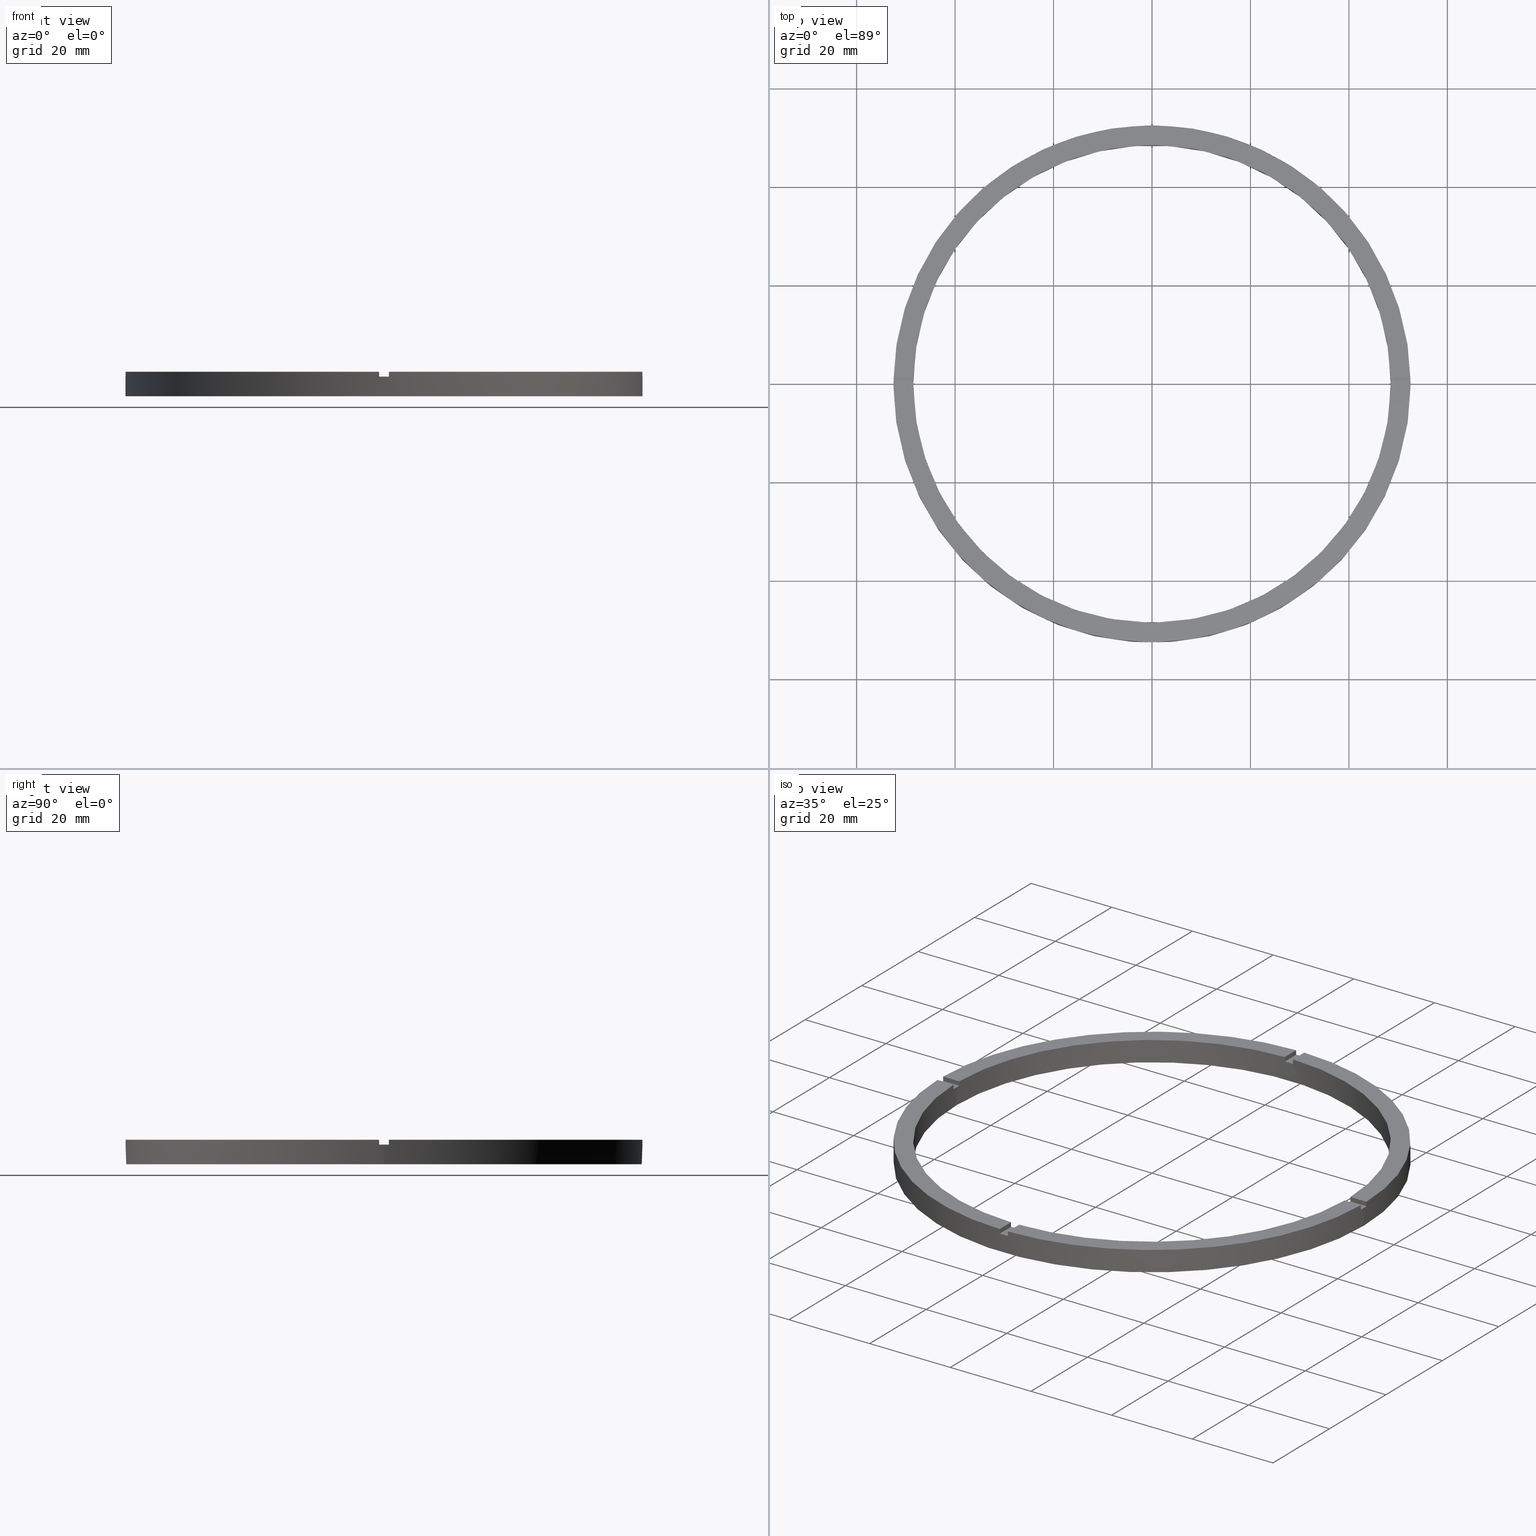
[diagram: canonical four-view strip — front | top / right | iso, engineering-drawing reading convention]
A machine part, canonical four-view strip (front | top / right | iso — engineering-drawing reading convention). The complete STEP part file that produces these views, byte-faithful:
ISO-10303-21;
HEADER;
FILE_DESCRIPTION (( 'STEP AP203' ),
    '1' );
FILE_NAME ('514214.step',
    '2024-12-26T02:48:46',
    ( 'MSI' ),
    ( '' ),
    'SwSTEP 2.0',
    'SolidWorks 2020',
    '' );
FILE_SCHEMA (( 'CONFIG_CONTROL_DESIGN' ));
ENDSEC;

DATA;
#1 = DIRECTION ( 'NONE',  ( -1.000000000000000000, -1.951563910473907735E-16, 0.000000000000000000 ) ) ;
#2 = AXIS2_PLACEMENT_3D ( 'NONE', #266, #256, #751 ) ;
#3 = CARTESIAN_POINT ( 'NONE',  ( -42.50000000000018474, -1.000000000000030198, 5.000000000000000000 ) ) ;
#4 = EDGE_CURVE ( 'NONE', #653, #121, #411, .T. ) ;
#5 = PLANE ( 'NONE',  #454 ) ;
#6 = DIRECTION ( 'NONE',  ( 1.000000000000000000, 0.000000000000000000, 0.000000000000000000 ) ) ;
#7 = CARTESIAN_POINT ( 'NONE',  ( -52.49047532648184244, 0.9999999999999679146, 5.000000000000000000 ) ) ;
#8 = DIRECTION ( 'NONE',  ( -1.000000000000000000, -6.505213034913025371E-17, -0.000000000000000000 ) ) ;
#9 = CARTESIAN_POINT ( 'NONE',  ( 0.000000000000000000, 0.000000000000000000, 4.000000000000000000 ) ) ;
#10 = ADVANCED_FACE ( 'NONE', ( #160 ), #308, .F. ) ;
#11 = DIRECTION ( 'NONE',  ( 1.000000000000000000, 0.000000000000000000, -0.000000000000000000 ) ) ;
#12 = DIRECTION ( 'NONE',  ( 1.000000000000000000, 0.000000000000000000, 0.000000000000000000 ) ) ;
#13 = DIRECTION ( 'NONE',  ( -0.000000000000000000, -0.000000000000000000, -1.000000000000000000 ) ) ;
#14 = ADVANCED_BREP_SHAPE_REPRESENTATION ( '514214', ( #387, #580 ), #174 ) ;
#15 = CARTESIAN_POINT ( 'NONE',  ( -52.49047532648184244, 0.9999999999999679146, 4.000000000000000000 ) ) ;
#16 = CARTESIAN_POINT ( 'NONE',  ( -52.50000000000000000, 0.000000000000000000, 4.000000000000000000 ) ) ;
#17 = CARTESIAN_POINT ( 'NONE',  ( -1.000000000000157430, -42.50000000000017764, 4.000000000000000000 ) ) ;
#18 = AXIS2_PLACEMENT_3D ( 'NONE', #747, #505, #217 ) ;
#19 = AXIS2_PLACEMENT_3D ( 'NONE', #773, #737, #71 ) ;
#20 = CARTESIAN_POINT ( 'NONE',  ( -48.50000000000000000, 0.000000000000000000, 5.000000000000000000 ) ) ;
#21 = DIRECTION ( 'NONE',  ( 0.000000000000000000, 0.000000000000000000, 1.000000000000000000 ) ) ;
#22 = CARTESIAN_POINT ( 'NONE',  ( 0.9999999999999729106, 52.49047532648184244, 5.000000000000000000 ) ) ;
#23 = CARTESIAN_POINT ( 'NONE',  ( -48.48968962573384545, 0.9999999999999685807, 5.000000000000000000 ) ) ;
#24 = DIRECTION ( 'NONE',  ( 1.000000000000000000, -0.000000000000000000, 0.000000000000000000 ) ) ;
#25 = CARTESIAN_POINT ( 'NONE',  ( 48.48968962573384545, -1.000000000000154987, 5.000000000000000000 ) ) ;
#26 = DIRECTION ( 'NONE',  ( 1.000000000000000000, 0.000000000000000000, -0.000000000000000000 ) ) ;
#27 = EDGE_CURVE ( 'NONE', #670, #429, #668, .T. ) ;
#28 = PLANE ( 'NONE',  #521 ) ;
#29 = DIRECTION ( 'NONE',  ( 1.000000000000000000, 0.000000000000000000, 0.000000000000000000 ) ) ;
#30 = PERSON_AND_ORGANIZATION_ROLE ( 'creator' ) ;
#31 = EDGE_CURVE ( 'NONE', #457, #82, #673, .T. ) ;
#32 = PRODUCT_DEFINITION_SHAPE ( 'NONE', 'NONE',  #280 ) ;
#33 = AXIS2_PLACEMENT_3D ( 'NONE', #44, #658, #326 ) ;
#34 = DIRECTION ( 'NONE',  ( 1.000000000000000000, 0.000000000000000000, 0.000000000000000000 ) ) ;
#35 = AXIS2_PLACEMENT_3D ( 'NONE', #615, #278, #64 ) ;
#36 = EDGE_CURVE ( 'NONE', #99, #107, #675, .T. ) ;
#37 = CARTESIAN_POINT ( 'NONE',  ( 48.48968962573384545, 0.9999999999998450129, 5.000000000000000000 ) ) ;
#38 = CARTESIAN_POINT ( 'NONE',  ( -1.000000000000156763, -48.48968962573384545, 5.000000000000000000 ) ) ;
#39 = EDGE_CURVE ( 'NONE', #596, #82, #218, .T. ) ;
#40 = DIRECTION ( 'NONE',  ( 0.000000000000000000, 0.000000000000000000, 1.000000000000000000 ) ) ;
#41 = CARTESIAN_POINT ( 'NONE',  ( -1.000000000000156319, -52.49047532648184244, 5.000000000000000000 ) ) ;
#42 = DIRECTION ( 'NONE',  ( 1.301042606982605074E-16, -1.000000000000000000, 0.000000000000000000 ) ) ;
#43 = EDGE_CURVE ( 'NONE', #130, #98, #480, .T. ) ;
#44 = CARTESIAN_POINT ( 'NONE',  ( 0.000000000000000000, 0.000000000000000000, 0.000000000000000000 ) ) ;
#45 = CC_DESIGN_DATE_AND_TIME_ASSIGNMENT ( #189, #200, ( #280 ) ) ;
#46 = CARTESIAN_POINT ( 'NONE',  ( 52.49047532648184244, -1.000000000000154765, 4.000000000000000000 ) ) ;
#47 = CALENDAR_DATE ( 2024, 26, 12 ) ;
#48 = CARTESIAN_POINT ( 'NONE',  ( -52.50000000000000000, 0.000000000000000000, 5.000000000000000000 ) ) ;
#49 = LOCAL_TIME ( 10, 48, 46.00000000000000000, #329 ) ;
#50 = EDGE_CURVE ( 'NONE', #605, #464, #733, .T. ) ;
#51 = PLANE ( 'NONE',  #740 ) ;
#52 = APPROVAL_DATE_TIME ( #314, #738 ) ;
#53 = DIRECTION ( 'NONE',  ( -0.000000000000000000, -0.000000000000000000, -1.000000000000000000 ) ) ;
#54 = DIRECTION ( 'NONE',  ( 1.000000000000000000, 0.000000000000000000, 0.000000000000000000 ) ) ;
#55 = LOCAL_TIME ( 10, 48, 46.00000000000000000, #315 ) ;
#56 = DATE_AND_TIME ( #61, #49 ) ;
#57 = DIRECTION ( 'NONE',  ( 0.000000000000000000, 0.000000000000000000, 1.000000000000000000 ) ) ;
#58 = EDGE_CURVE ( 'NONE', #722, #400, #736, .T. ) ;
#59 = CARTESIAN_POINT ( 'NONE',  ( 0.9999999999999729106, 48.48968962573384545, 4.000000000000000000 ) ) ;
#60 = DIRECTION ( 'NONE',  ( -1.000000000000000000, -1.301042606982605074E-16, 0.000000000000000000 ) ) ;
#61 = CALENDAR_DATE ( 2024, 26, 12 ) ;
#62 = COORDINATED_UNIVERSAL_TIME_OFFSET ( 8, 0, .AHEAD. ) ;
#63 = CARTESIAN_POINT ( 'NONE',  ( 0.000000000000000000, 0.000000000000000000, 5.000000000000000000 ) ) ;
#64 = DIRECTION ( 'NONE',  ( 0.000000000000000000, 0.000000000000000000, 1.000000000000000000 ) ) ;
#65 = DIRECTION ( 'NONE',  ( -0.000000000000000000, -0.000000000000000000, -1.000000000000000000 ) ) ;
#66 = EDGE_CURVE ( 'NONE', #151, #616, #228, .T. ) ;
#67 = AXIS2_PLACEMENT_3D ( 'NONE', #328, #229, #34 ) ;
#68 = DIRECTION ( 'NONE',  ( 1.000000000000000000, 0.000000000000000000, -0.000000000000000000 ) ) ;
#69 = CARTESIAN_POINT ( 'NONE',  ( 0.000000000000000000, 0.000000000000000000, 5.000000000000000000 ) ) ;
#70 = EDGE_CURVE ( 'NONE', #366, #624, #477, .T. ) ;
#71 = DIRECTION ( 'NONE',  ( 1.000000000000000000, 0.000000000000000000, 0.000000000000000000 ) ) ;
#72 = LOCAL_TIME ( 10, 48, 46.00000000000000000, #62 ) ;
#73 = AXIS2_PLACEMENT_3D ( 'NONE', #552, #275, #595 ) ;
#74 = CARTESIAN_POINT ( 'NONE',  ( -52.49047532648184244, -1.000000000000032196, 5.000000000000000000 ) ) ;
#75 = ADVANCED_FACE ( 'NONE', ( #219 ), #537, .F. ) ;
#76 = DIRECTION ( 'NONE',  ( 1.000000000000000000, 0.000000000000000000, 0.000000000000000000 ) ) ;
#77 = ORIENTED_EDGE ( 'NONE', *, *, #493, .T. ) ;
#78 = CARTESIAN_POINT ( 'NONE',  ( 0.000000000000000000, 0.000000000000000000, 4.000000000000000000 ) ) ;
#79 = ORIENTED_EDGE ( 'NONE', *, *, #147, .F. ) ;
#80 = AXIS2_PLACEMENT_3D ( 'NONE', #390, #24, #490 ) ;
#81 = EDGE_LOOP ( 'NONE', ( #362, #359, #413, #622 ) ) ;
#82 = VERTEX_POINT ( 'NONE', #579 ) ;
#83 = ORIENTED_EDGE ( 'NONE', *, *, #27, .T. ) ;
#84 = ORIENTED_EDGE ( 'NONE', *, *, #746, .F. ) ;
#85 = APPLICATION_CONTEXT ( 'configuration controlled 3d designs of mechanical parts and assemblies' ) ;
#86 = ORIENTED_EDGE ( 'NONE', *, *, #304, .T. ) ;
#87 = ORIENTED_EDGE ( 'NONE', *, *, #31, .F. ) ;
#88 = CC_DESIGN_APPROVAL ( #255, ( #619 ) ) ;
#89 = ORIENTED_EDGE ( 'NONE', *, *, #4, .F. ) ;
#90 = ORIENTED_EDGE ( 'NONE', *, *, #66, .T. ) ;
#91 = AXIS2_PLACEMENT_3D ( 'NONE', #558, #519, #556 ) ;
#92 = ORIENTED_EDGE ( 'NONE', *, *, #458, .T. ) ;
#93 = VERTEX_POINT ( 'NONE', #264 ) ;
#94 = ORIENTED_EDGE ( 'NONE', *, *, #231, .T. ) ;
#95 = EDGE_LOOP ( 'NONE', ( #350, #606, #178, #330 ) ) ;
#96 = DIRECTION ( 'NONE',  ( 0.000000000000000000, 0.000000000000000000, 1.000000000000000000 ) ) ;
#97 = ORIENTED_EDGE ( 'NONE', *, *, #437, .F. ) ;
#98 = VERTEX_POINT ( 'NONE', #502 ) ;
#99 = VERTEX_POINT ( 'NONE', #573 ) ;
#100 = ORIENTED_EDGE ( 'NONE', *, *, #590, .T. ) ;
#101 = ORIENTED_EDGE ( 'NONE', *, *, #522, .T. ) ;
#102 = VERTEX_POINT ( 'NONE', #46 ) ;
#103 = ORIENTED_EDGE ( 'NONE', *, *, #442, .F. ) ;
#104 = ORIENTED_EDGE ( 'NONE', *, *, #220, .F. ) ;
#105 = ORIENTED_EDGE ( 'NONE', *, *, #732, .F. ) ;
#106 = ORIENTED_EDGE ( 'NONE', *, *, #27, .F. ) ;
#107 = VERTEX_POINT ( 'NONE', #687 ) ;
#108 = ORIENTED_EDGE ( 'NONE', *, *, #39, .F. ) ;
#109 = ORIENTED_EDGE ( 'NONE', *, *, #50, .T. ) ;
#110 = VECTOR ( 'NONE', #325, 1000.000000000000000 ) ;
#111 = ORIENTED_EDGE ( 'NONE', *, *, #690, .T. ) ;
#112 = VERTEX_POINT ( 'NONE', #148 ) ;
#113 = VECTOR ( 'NONE', #741, 1000.000000000000000 ) ;
#114 = DIRECTION ( 'NONE',  ( 0.000000000000000000, 0.000000000000000000, 1.000000000000000000 ) ) ;
#115 = ORIENTED_EDGE ( 'NONE', *, *, #389, .T. ) ;
#116 = CARTESIAN_POINT ( 'NONE',  ( -1.000000000000027089, 48.48968962573384545, 5.000000000000000000 ) ) ;
#117 = VERTEX_POINT ( 'NONE', #540 ) ;
#118 = CIRCLE ( 'NONE', #142, 48.50000000000000000 ) ;
#119 = ORIENTED_EDGE ( 'NONE', *, *, #527, .F. ) ;
#120 = EDGE_CURVE ( 'NONE', #124, #130, #474, .T. ) ;
#121 = VERTEX_POINT ( 'NONE', #681 ) ;
#122 = FACE_OUTER_BOUND ( 'NONE', #468, .T. ) ;
#123 = ORIENTED_EDGE ( 'NONE', *, *, #50, .F. ) ;
#124 = VERTEX_POINT ( 'NONE', #752 ) ;
#125 = CARTESIAN_POINT ( 'NONE',  ( 0.000000000000000000, 0.000000000000000000, 5.000000000000000000 ) ) ;
#126 = VERTEX_POINT ( 'NONE', #38 ) ;
#127 = EDGE_LOOP ( 'NONE', ( #594, #338, #332, #351, #79, #115, #393, #651, #372, #345, #623, #620 ) ) ;
#128 = VECTOR ( 'NONE', #1, 1000.000000000000000 ) ;
#129 = DIRECTION ( 'NONE',  ( 1.000000000000000000, 0.000000000000000000, 0.000000000000000000 ) ) ;
#130 = VERTEX_POINT ( 'NONE', #116 ) ;
#131 = ORIENTED_EDGE ( 'NONE', *, *, #297, .F. ) ;
#132 = LINE ( 'NONE', #267, #152 ) ;
#133 = ORIENTED_EDGE ( 'NONE', *, *, #493, .F. ) ;
#134 = EDGE_LOOP ( 'NONE', ( #341, #100, #608, #661, #377, #655, #138, #343, #89, #209, #711, #385 ) ) ;
#135 = LINE ( 'NONE', #753, #665 ) ;
#136 = VERTEX_POINT ( 'NONE', #570 ) ;
#137 = AXIS2_PLACEMENT_3D ( 'NONE', #69, #768, #185 ) ;
#138 = ORIENTED_EDGE ( 'NONE', *, *, #318, .F. ) ;
#139 = CIRCLE ( 'NONE', #729, 52.50000000000000000 ) ;
#140 = PLANE ( 'NONE',  #357 ) ;
#141 = ORIENTED_EDGE ( 'NONE', *, *, #318, .T. ) ;
#142 = AXIS2_PLACEMENT_3D ( 'NONE', #456, #504, #292 ) ;
#143 = ORIENTED_EDGE ( 'NONE', *, *, #437, .T. ) ;
#144 = LINE ( 'NONE', #237, #428 ) ;
#145 = ORIENTED_EDGE ( 'NONE', *, *, #754, .T. ) ;
#146 = ADVANCED_FACE ( 'NONE', ( #211, #735 ), #755, .F. ) ;
#147 = EDGE_CURVE ( 'NONE', #617, #640, #473, .T. ) ;
#148 = CARTESIAN_POINT ( 'NONE',  ( 48.50000000000000000, 5.939536975864663363E-15, 0.000000000000000000 ) ) ;
#149 = ORIENTED_EDGE ( 'NONE', *, *, #726, .F. ) ;
#150 = VECTOR ( 'NONE', #212, 1000.000000000000000 ) ;
#151 = VERTEX_POINT ( 'NONE', #479 ) ;
#152 = VECTOR ( 'NONE', #585, 1000.000000000000000 ) ;
#153 = VERTEX_POINT ( 'NONE', #699 ) ;
#154 = LINE ( 'NONE', #360, #159 ) ;
#155 = CARTESIAN_POINT ( 'NONE',  ( 42.49999999999998579, -1.000000000000155431, 4.000000000000000000 ) ) ;
#156 = VERTEX_POINT ( 'NONE', #589 ) ;
#157 = FACE_OUTER_BOUND ( 'NONE', #127, .T. ) ;
#158 = VECTOR ( 'NONE', #516, 1000.000000000000000 ) ;
#159 = VECTOR ( 'NONE', #766, 1000.000000000000000 ) ;
#160 = FACE_OUTER_BOUND ( 'NONE', #95, .T. ) ;
#161 = ORIENTED_EDGE ( 'NONE', *, *, #533, .T. ) ;
#162 = FACE_OUTER_BOUND ( 'NONE', #336, .T. ) ;
#163 = DIRECTION ( 'NONE',  ( 0.000000000000000000, 0.000000000000000000, 1.000000000000000000 ) ) ;
#164 = ORIENTED_EDGE ( 'NONE', *, *, #517, .T. ) ;
#165 = CIRCLE ( 'NONE', #67, 48.50000000000000000 ) ;
#166 = DIRECTION ( 'NONE',  ( -1.000000000000000000, 0.000000000000000000, 0.000000000000000000 ) ) ;
#167 = CARTESIAN_POINT ( 'NONE',  ( -1.000000000000157430, -42.50000000000017764, 5.000000000000000000 ) ) ;
#168 = CIRCLE ( 'NONE', #526, 48.50000000000000000 ) ;
#169 = LINE ( 'NONE', #564, #150 ) ;
#170 = LINE ( 'NONE', #296, #632 ) ;
#171 = CIRCLE ( 'NONE', #575, 52.50000000000000000 ) ;
#172 = CARTESIAN_POINT ( 'NONE',  ( -48.50000000000000000, 0.000000000000000000, 0.000000000000000000 ) ) ;
#173 = DIRECTION ( 'NONE',  ( 0.000000000000000000, 0.000000000000000000, 1.000000000000000000 ) ) ;
#174 =( GEOMETRIC_REPRESENTATION_CONTEXT ( 3 ) GLOBAL_UNCERTAINTY_ASSIGNED_CONTEXT ( ( #660 ) ) GLOBAL_UNIT_ASSIGNED_CONTEXT ( ( #317, #181, #243 ) ) REPRESENTATION_CONTEXT ( 'NONE', 'WORKASPACE' ) );
#175 = LINE ( 'NONE', #728, #720 ) ;
#176 = VECTOR ( 'NONE', #21, 1000.000000000000000 ) ;
#177 = DIRECTION ( 'NONE',  ( 0.000000000000000000, 0.000000000000000000, 1.000000000000000000 ) ) ;
#178 = ORIENTED_EDGE ( 'NONE', *, *, #732, .T. ) ;
#179 = FACE_OUTER_BOUND ( 'NONE', #415, .T. ) ;
#180 = DIRECTION ( 'NONE',  ( 0.000000000000000000, 0.000000000000000000, 1.000000000000000000 ) ) ;
#181 =( NAMED_UNIT ( * ) PLANE_ANGLE_UNIT ( ) SI_UNIT ( $, .RADIAN. ) );
#182 = CIRCLE ( 'NONE', #763, 48.50000000000000000 ) ;
#183 = ADVANCED_FACE ( 'NONE', ( #743 ), #51, .T. ) ;
#184 = CARTESIAN_POINT ( 'NONE',  ( 0.9999999999998432365, -48.48968962573384545, 5.000000000000000000 ) ) ;
#185 = DIRECTION ( 'NONE',  ( 1.000000000000000000, 0.000000000000000000, 0.000000000000000000 ) ) ;
#186 = CARTESIAN_POINT ( 'NONE',  ( 0.9999999999999729106, 48.48968962573384545, 5.000000000000000000 ) ) ;
#187 = CARTESIAN_POINT ( 'NONE',  ( 0.9999999999999729106, 42.49999999999999289, 5.000000000000000000 ) ) ;
#188 = ORIENTED_EDGE ( 'NONE', *, *, #304, .F. ) ;
#189 = DATE_AND_TIME ( #445, #444 ) ;
#190 = EDGE_CURVE ( 'NONE', #195, #117, #221, .T. ) ;
#191 = ORIENTED_EDGE ( 'NONE', *, *, #496, .F. ) ;
#192 = APPROVAL_PERSON_ORGANIZATION ( #436, #547, #776 ) ;
#193 = EDGE_CURVE ( 'NONE', #102, #82, #481, .T. ) ;
#194 = CARTESIAN_POINT ( 'NONE',  ( -52.49047532648184244, -1.000000000000032196, 5.000000000000000000 ) ) ;
#195 = VERTEX_POINT ( 'NONE', #489 ) ;
#196 = ORIENTED_EDGE ( 'NONE', *, *, #120, .F. ) ;
#197 = CIRCLE ( 'NONE', #19, 48.50000000000000000 ) ;
#198 = VERTEX_POINT ( 'NONE', #15 ) ;
#199 = COORDINATED_UNIVERSAL_TIME_OFFSET ( 8, 0, .AHEAD. ) ;
#200 = DATE_TIME_ROLE ( 'creation_date' ) ;
#201 = AXIS2_PLACEMENT_3D ( 'NONE', #466, #96, #254 ) ;
#202 = AXIS2_PLACEMENT_3D ( 'NONE', #239, #245, #512 ) ;
#203 = LINE ( 'NONE', #514, #459 ) ;
#204 = ORIENTED_EDGE ( 'NONE', *, *, #654, .F. ) ;
#205 = LINE ( 'NONE', #320, #727 ) ;
#206 = PLANE ( 'NONE',  #233 ) ;
#207 = EDGE_LOOP ( 'NONE', ( #398, #86, #77, #598, #591, #346 ) ) ;
#208 = FACE_OUTER_BOUND ( 'NONE', #81, .T. ) ;
#209 = ORIENTED_EDGE ( 'NONE', *, *, #701, .T. ) ;
#210 = FACE_OUTER_BOUND ( 'NONE', #641, .T. ) ;
#211 = FACE_OUTER_BOUND ( 'NONE', #409, .T. ) ;
#212 = DIRECTION ( 'NONE',  ( -1.000000000000000000, -6.505213034913025371E-17, -0.000000000000000000 ) ) ;
#213 = VECTOR ( 'NONE', #771, 1000.000000000000000 ) ;
#214 = ADVANCED_FACE ( 'NONE', ( #223 ), #731, .T. ) ;
#215 = CARTESIAN_POINT ( 'NONE',  ( 0.000000000000000000, 0.000000000000000000, 0.000000000000000000 ) ) ;
#216 = VECTOR ( 'NONE', #163, 1000.000000000000000 ) ;
#217 = DIRECTION ( 'NONE',  ( 1.000000000000000000, 0.000000000000000000, 0.000000000000000000 ) ) ;
#218 = CIRCLE ( 'NONE', #541, 52.50000000000000000 ) ;
#219 = FACE_OUTER_BOUND ( 'NONE', #650, .T. ) ;
#220 = EDGE_CURVE ( 'NONE', #621, #112, #224, .T. ) ;
#221 = LINE ( 'NONE', #184, #487 ) ;
#222 = DIRECTION ( 'NONE',  ( 1.000000000000000000, 0.000000000000000000, 0.000000000000000000 ) ) ;
#223 = FACE_OUTER_BOUND ( 'NONE', #645, .T. ) ;
#224 = CIRCLE ( 'NONE', #602, 48.50000000000000000 ) ;
#225 = LINE ( 'NONE', #20, #213 ) ;
#226 = DIRECTION ( 'NONE',  ( -1.301042606982605074E-16, 1.000000000000000000, -0.000000000000000000 ) ) ;
#227 = CARTESIAN_POINT ( 'NONE',  ( 52.50000000000000000, 6.429395695523603956E-15, 0.000000000000000000 ) ) ;
#228 = CIRCLE ( 'NONE', #201, 48.50000000000000000 ) ;
#229 = DIRECTION ( 'NONE',  ( 0.000000000000000000, 0.000000000000000000, 1.000000000000000000 ) ) ;
#230 = CARTESIAN_POINT ( 'NONE',  ( 0.9999999999999729106, 48.48968962573384545, 5.000000000000000000 ) ) ;
#231 = EDGE_CURVE ( 'NONE', #596, #156, #486, .T. ) ;
#232 = CARTESIAN_POINT ( 'NONE',  ( 0.000000000000000000, 0.000000000000000000, 4.000000000000000000 ) ) ;
#233 = AXIS2_PLACEMENT_3D ( 'NONE', #569, #685, #294 ) ;
#234 = DIRECTION ( 'NONE',  ( -0.000000000000000000, -0.000000000000000000, -1.000000000000000000 ) ) ;
#235 = CARTESIAN_POINT ( 'NONE',  ( 0.9999999999998436806, -52.49047532648184955, 5.000000000000000000 ) ) ;
#236 = CARTESIAN_POINT ( 'NONE',  ( 0.000000000000000000, 0.000000000000000000, 4.000000000000000000 ) ) ;
#237 = CARTESIAN_POINT ( 'NONE',  ( 52.50000000000000000, 6.429395695523603956E-15, 5.000000000000000000 ) ) ;
#238 = AXIS2_PLACEMENT_3D ( 'NONE', #783, #536, #448 ) ;
#239 = CARTESIAN_POINT ( 'NONE',  ( 0.000000000000000000, 0.000000000000000000, 5.000000000000000000 ) ) ;
#240 = EDGE_CURVE ( 'NONE', #151, #621, #225, .T. ) ;
#241 = DIRECTION ( 'NONE',  ( -0.000000000000000000, -0.000000000000000000, -1.000000000000000000 ) ) ;
#242 = CARTESIAN_POINT ( 'NONE',  ( -48.48968962573384545, 0.9999999999999685807, 5.000000000000000000 ) ) ;
#243 =( NAMED_UNIT ( * ) SI_UNIT ( $, .STERADIAN. ) SOLID_ANGLE_UNIT ( ) );
#244 = CARTESIAN_POINT ( 'NONE',  ( 0.000000000000000000, 0.000000000000000000, 5.000000000000000000 ) ) ;
#245 = DIRECTION ( 'NONE',  ( -0.000000000000000000, -0.000000000000000000, -1.000000000000000000 ) ) ;
#246 = EDGE_CURVE ( 'NONE', #130, #626, #168, .T. ) ;
#247 = CARTESIAN_POINT ( 'NONE',  ( 0.000000000000000000, 0.000000000000000000, 5.000000000000000000 ) ) ;
#248 = DIRECTION ( 'NONE',  ( 0.000000000000000000, 0.000000000000000000, 1.000000000000000000 ) ) ;
#249 = APPROVAL_STATUS ( 'not_yet_approved' ) ;
#250 = DIRECTION ( 'NONE',  ( 1.000000000000000000, 1.951563910473907735E-16, 0.000000000000000000 ) ) ;
#251 = AXIS2_PLACEMENT_3D ( 'NONE', #478, #679, #222 ) ;
#252 = EDGE_CURVE ( 'NONE', #355, #626, #406, .T. ) ;
#253 = CARTESIAN_POINT ( 'NONE',  ( 0.000000000000000000, 0.000000000000000000, 4.000000000000000000 ) ) ;
#254 = DIRECTION ( 'NONE',  ( 1.000000000000000000, 0.000000000000000000, 0.000000000000000000 ) ) ;
#255 = APPROVAL ( #497, 'δָ��' ) ;
#256 = DIRECTION ( 'NONE',  ( 0.000000000000000000, 0.000000000000000000, 1.000000000000000000 ) ) ;
#257 = AXIS2_PLACEMENT_3D ( 'NONE', #271, #274, #76 ) ;
#258 = AXIS2_PLACEMENT_3D ( 'NONE', #523, #248, #54 ) ;
#259 = ADVANCED_FACE ( 'NONE', ( #122 ), #682, .F. ) ;
#260 = DIRECTION ( 'NONE',  ( -0.000000000000000000, -0.000000000000000000, -1.000000000000000000 ) ) ;
#261 = CC_DESIGN_DATE_AND_TIME_ASSIGNMENT ( #319, #565, ( #619 ) ) ;
#262 = DIRECTION ( 'NONE',  ( 1.000000000000000000, 0.000000000000000000, -0.000000000000000000 ) ) ;
#263 = ADVANCED_FACE ( 'NONE', ( #425 ), #28, .T. ) ;
#264 = CARTESIAN_POINT ( 'NONE',  ( -1.000000000000156763, -48.48968962573384545, 4.000000000000000000 ) ) ;
#265 = CARTESIAN_POINT ( 'NONE',  ( 0.000000000000000000, 0.000000000000000000, 4.000000000000000000 ) ) ;
#266 = CARTESIAN_POINT ( 'NONE',  ( 0.000000000000000000, 0.000000000000000000, 5.000000000000000000 ) ) ;
#267 = CARTESIAN_POINT ( 'NONE',  ( -1.000000000000156763, -48.48968962573384545, 5.000000000000000000 ) ) ;
#268 = PLANE ( 'NONE',  #384 ) ;
#269 = EDGE_CURVE ( 'NONE', #723, #374, #382, .T. ) ;
#270 = DIRECTION ( 'NONE',  ( 0.000000000000000000, 0.000000000000000000, 1.000000000000000000 ) ) ;
#271 = CARTESIAN_POINT ( 'NONE',  ( 0.000000000000000000, 0.000000000000000000, 4.000000000000000000 ) ) ;
#272 = DIRECTION ( 'NONE',  ( 0.000000000000000000, 0.000000000000000000, 1.000000000000000000 ) ) ;
#273 = AXIS2_PLACEMENT_3D ( 'NONE', #63, #241, #524 ) ;
#274 = DIRECTION ( 'NONE',  ( 0.000000000000000000, -0.000000000000000000, 1.000000000000000000 ) ) ;
#275 = DIRECTION ( 'NONE',  ( 0.000000000000000000, 0.000000000000000000, 1.000000000000000000 ) ) ;
#276 = PRODUCT ( '514214', '514214', '', ( #525 ) ) ;
#277 = DIRECTION ( 'NONE',  ( 0.000000000000000000, 0.000000000000000000, 1.000000000000000000 ) ) ;
#278 = DIRECTION ( 'NONE',  ( -1.000000000000000000, 0.000000000000000000, 0.000000000000000000 ) ) ;
#279 = PLANE ( 'NONE',  #760 ) ;
#280 = PRODUCT_DEFINITION ( 'δ֪', '', #285, #712 ) ;
#281 = CARTESIAN_POINT ( 'NONE',  ( 52.49047532648184244, -1.000000000000154765, 5.000000000000000000 ) ) ;
#282 = AXIS2_PLACEMENT_3D ( 'NONE', #769, #180, #313 ) ;
#283 = ADVANCED_FACE ( 'NONE', ( #642 ), #206, .F. ) ;
#284 = DIRECTION ( 'NONE',  ( -0.000000000000000000, 0.000000000000000000, 1.000000000000000000 ) ) ;
#285 = PRODUCT_DEFINITION_FORMATION_WITH_SPECIFIED_SOURCE ( '�κ�', '', #276, .NOT_KNOWN. ) ;
#286 = SECURITY_CLASSIFICATION_LEVEL ( 'unclassified' ) ;
#287 = CARTESIAN_POINT ( 'NONE',  ( -52.49047532648184244, -1.000000000000032196, 4.000000000000000000 ) ) ;
#288 = DIRECTION ( 'NONE',  ( -0.000000000000000000, -1.000000000000000000, -0.000000000000000000 ) ) ;
#289 = CARTESIAN_POINT ( 'NONE',  ( -42.50000000000018474, 0.9999999999999699130, 4.000000000000000000 ) ) ;
#290 = DIRECTION ( 'NONE',  ( 0.000000000000000000, 0.000000000000000000, 1.000000000000000000 ) ) ;
#291 = DIRECTION ( 'NONE',  ( 1.951563910473907735E-16, -1.000000000000000000, 0.000000000000000000 ) ) ;
#292 = DIRECTION ( 'NONE',  ( 1.000000000000000000, 0.000000000000000000, 0.000000000000000000 ) ) ;
#293 = EDGE_CURVE ( 'NONE', #198, #153, #674, .T. ) ;
#294 = DIRECTION ( 'NONE',  ( -1.301042606982605074E-16, 1.000000000000000000, 0.000000000000000000 ) ) ;
#295 = DIRECTION ( 'NONE',  ( -0.000000000000000000, -0.000000000000000000, -1.000000000000000000 ) ) ;
#296 = CARTESIAN_POINT ( 'NONE',  ( 0.9999999999998425704, -42.50000000000017764, 4.000000000000000000 ) ) ;
#297 = EDGE_CURVE ( 'NONE', #93, #670, #373, .T. ) ;
#298 = EDGE_CURVE ( 'NONE', #198, #597, #399, .T. ) ;
#299 = DIRECTION ( 'NONE',  ( 1.000000000000000000, 6.505213034913025371E-17, 0.000000000000000000 ) ) ;
#300 = CARTESIAN_POINT ( 'NONE',  ( -1.000000000000027089, 42.49999999999999289, 5.000000000000000000 ) ) ;
#301 = CC_DESIGN_PERSON_AND_ORGANIZATION_ASSIGNMENT ( #327, #659, ( #285 ) ) ;
#302 = DIRECTION ( 'NONE',  ( 1.000000000000000000, 0.000000000000000000, 0.000000000000000000 ) ) ;
#303 = DIRECTION ( 'NONE',  ( 1.000000000000000000, 0.000000000000000000, 0.000000000000000000 ) ) ;
#304 = EDGE_CURVE ( 'NONE', #597, #374, #412, .T. ) ;
#305 = CARTESIAN_POINT ( 'NONE',  ( -42.50000000000018474, 0.9999999999999699130, 4.000000000000000000 ) ) ;
#306 = CARTESIAN_POINT ( 'NONE',  ( 0.000000000000000000, 0.000000000000000000, 4.000000000000000000 ) ) ;
#307 = ADVANCED_FACE ( 'NONE', ( #162 ), #749, .F. ) ;
#308 = PLANE ( 'NONE',  #80 ) ;
#309 = DIRECTION ( 'NONE',  ( 1.000000000000000000, 0.000000000000000000, 0.000000000000000000 ) ) ;
#310 = DIRECTION ( 'NONE',  ( -0.000000000000000000, -1.000000000000000000, -0.000000000000000000 ) ) ;
#311 = EDGE_CURVE ( 'NONE', #334, #640, #165, .T. ) ;
#312 = CARTESIAN_POINT ( 'NONE',  ( -1.000000000000156319, -52.49047532648184244, 5.000000000000000000 ) ) ;
#313 = DIRECTION ( 'NONE',  ( 1.000000000000000000, 0.000000000000000000, -0.000000000000000000 ) ) ;
#314 = DATE_AND_TIME ( #581, #55 ) ;
#315 = COORDINATED_UNIVERSAL_TIME_OFFSET ( 8, 0, .AHEAD. ) ;
#316 = PERSON_AND_ORGANIZATION ( #331, #689 ) ;
#317 =( LENGTH_UNIT ( ) NAMED_UNIT ( * ) SI_UNIT ( .MILLI., .METRE. ) );
#318 = EDGE_CURVE ( 'NONE', #124, #153, #684, .T. ) ;
#319 = DATE_AND_TIME ( #47, #72 ) ;
#320 = CARTESIAN_POINT ( 'NONE',  ( 52.49047532648184955, 0.9999999999998452349, 5.000000000000000000 ) ) ;
#321 = AXIS2_PLACEMENT_3D ( 'NONE', #305, #545, #555 ) ;
#322 = DIRECTION ( 'NONE',  ( 1.000000000000000000, 0.000000000000000000, 0.000000000000000000 ) ) ;
#323 = PERSON_AND_ORGANIZATION ( #331, #689 ) ;
#324 = EDGE_CURVE ( 'NONE', #723, #136, #410, .T. ) ;
#325 = DIRECTION ( 'NONE',  ( -0.000000000000000000, -0.000000000000000000, -1.000000000000000000 ) ) ;
#326 = DIRECTION ( 'NONE',  ( 1.000000000000000000, 0.000000000000000000, -0.000000000000000000 ) ) ;
#327 = PERSON_AND_ORGANIZATION ( #331, #689 ) ;
#328 = CARTESIAN_POINT ( 'NONE',  ( 0.000000000000000000, 0.000000000000000000, 5.000000000000000000 ) ) ;
#329 = COORDINATED_UNIVERSAL_TIME_OFFSET ( 8, 0, .AHEAD. ) ;
#330 = ORIENTED_EDGE ( 'NONE', *, *, #701, .F. ) ;
#331 = PERSON ( 'δָ��', 'δָ��', 'δָ��', ('δָ��'), ('δָ��'), ('δָ��') ) ;
#332 = ORIENTED_EDGE ( 'NONE', *, *, #758, .F. ) ;
#333 = DIRECTION ( 'NONE',  ( 1.000000000000000000, 1.951563910473907735E-16, -0.000000000000000000 ) ) ;
#334 = VERTEX_POINT ( 'NONE', #37 ) ;
#335 = EDGE_LOOP ( 'NONE', ( #610, #611, #666, #434 ) ) ;
#336 = EDGE_LOOP ( 'NONE', ( #143, #379, #123, #149 ) ) ;
#337 = ORIENTED_EDGE ( 'NONE', *, *, #746, .T. ) ;
#338 = ORIENTED_EDGE ( 'NONE', *, *, #509, .T. ) ;
#339 = PLANE ( 'NONE',  #321 ) ;
#340 = EDGE_CURVE ( 'NONE', #112, #621, #365, .T. ) ;
#341 = ORIENTED_EDGE ( 'NONE', *, *, #765, .F. ) ;
#342 = EDGE_LOOP ( 'NONE', ( #87, #84, #361, #625 ) ) ;
#343 = ORIENTED_EDGE ( 'NONE', *, *, #380, .T. ) ;
#344 = EDGE_LOOP ( 'NONE', ( #395, #431, #109, #603, #634, #92 ) ) ;
#345 = ORIENTED_EDGE ( 'NONE', *, *, #676, .T. ) ;
#346 = ORIENTED_EDGE ( 'NONE', *, *, #442, .T. ) ;
#347 = EDGE_LOOP ( 'NONE', ( #420, #646, #599, #161 ) ) ;
#348 = ORIENTED_EDGE ( 'NONE', *, *, #269, .T. ) ;
#349 = DIRECTION ( 'NONE',  ( 0.000000000000000000, 0.000000000000000000, 1.000000000000000000 ) ) ;
#350 = ORIENTED_EDGE ( 'NONE', *, *, #533, .F. ) ;
#351 = ORIENTED_EDGE ( 'NONE', *, *, #311, .T. ) ;
#352 = ORIENTED_EDGE ( 'NONE', *, *, #190, .F. ) ;
#353 = AXIS2_PLACEMENT_3D ( 'NONE', #9, #756, #449 ) ;
#354 = ORIENTED_EDGE ( 'NONE', *, *, #506, .T. ) ;
#355 = VERTEX_POINT ( 'NONE', #363 ) ;
#356 = ORIENTED_EDGE ( 'NONE', *, *, #544, .T. ) ;
#357 = AXIS2_PLACEMENT_3D ( 'NONE', #232, #703, #262 ) ;
#358 = ORIENTED_EDGE ( 'NONE', *, *, #754, .F. ) ;
#359 = ORIENTED_EDGE ( 'NONE', *, *, #527, .T. ) ;
#360 = CARTESIAN_POINT ( 'NONE',  ( 0.9999999999999729106, 42.49999999999999289, 4.000000000000000000 ) ) ;
#361 = ORIENTED_EDGE ( 'NONE', *, *, #544, .F. ) ;
#362 = ORIENTED_EDGE ( 'NONE', *, *, #426, .T. ) ;
#363 = CARTESIAN_POINT ( 'NONE',  ( -48.48968962573384545, 0.9999999999999685807, 4.000000000000000000 ) ) ;
#364 = ORIENTED_EDGE ( 'NONE', *, *, #499, .F. ) ;
#365 = CIRCLE ( 'NONE', #778, 48.50000000000000000 ) ;
#366 = VERTEX_POINT ( 'NONE', #501 ) ;
#367 = EDGE_LOOP ( 'NONE', ( #105, #714, #97, #462 ) ) ;
#368 = FACE_OUTER_BOUND ( 'NONE', #709, .T. ) ;
#369 = ORIENTED_EDGE ( 'NONE', *, *, #324, .F. ) ;
#370 = CARTESIAN_POINT ( 'NONE',  ( 0.000000000000000000, 0.000000000000000000, 5.000000000000000000 ) ) ;
#371 = CC_DESIGN_PERSON_AND_ORGANIZATION_ASSIGNMENT ( #697, #30, ( #280 ) ) ;
#372 = ORIENTED_EDGE ( 'NONE', *, *, #252, .F. ) ;
#373 = LINE ( 'NONE', #572, #656 ) ;
#374 = VERTEX_POINT ( 'NONE', #287 ) ;
#375 = CARTESIAN_POINT ( 'NONE',  ( -48.48968962573384545, -1.000000000000031530, 4.000000000000000000 ) ) ;
#376 = DIRECTION ( 'NONE',  ( 1.000000000000000000, 0.000000000000000000, 0.000000000000000000 ) ) ;
#377 = ORIENTED_EDGE ( 'NONE', *, *, #298, .F. ) ;
#378 = CIRCLE ( 'NONE', #688, 48.50000000000000000 ) ;
#379 = ORIENTED_EDGE ( 'NONE', *, *, #758, .T. ) ;
#380 = EDGE_CURVE ( 'NONE', #124, #121, #627, .T. ) ;
#381 = CLOSED_SHELL ( 'NONE', ( #259, #742, #782, #183, #649, #443, #146, #214, #539, #75, #567, #577, #283, #774, #750, #307, #500, #708, #633, #10, #263 ) ) ;
#382 = LINE ( 'NONE', #74, #113 ) ;
#383 = EDGE_LOOP ( 'NONE', ( #196, #141, #204, #706 ) ) ;
#384 = AXIS2_PLACEMENT_3D ( 'NONE', #721, #546, #587 ) ;
#385 = ORIENTED_EDGE ( 'NONE', *, *, #726, .T. ) ;
#386 = VECTOR ( 'NONE', #333, 1000.000000000000000 ) ;
#387 = MANIFOLD_SOLID_BREP ( '�г�-����1', #381 ) ;
#388 = ORIENTED_EDGE ( 'NONE', *, *, #193, .T. ) ;
#389 = EDGE_CURVE ( 'NONE', #617, #98, #118, .T. ) ;
#390 = CARTESIAN_POINT ( 'NONE',  ( 0.9999999999999729106, 42.49999999999999289, 4.000000000000000000 ) ) ;
#391 = ORIENTED_EDGE ( 'NONE', *, *, #293, .F. ) ;
#392 = VECTOR ( 'NONE', #53, 1000.000000000000000 ) ;
#393 = ORIENTED_EDGE ( 'NONE', *, *, #43, .F. ) ;
#394 = CARTESIAN_POINT ( 'NONE',  ( 0.9999999999998425704, -42.50000000000017764, 5.000000000000000000 ) ) ;
#395 = ORIENTED_EDGE ( 'NONE', *, *, #715, .T. ) ;
#396 = ORIENTED_EDGE ( 'NONE', *, *, #499, .T. ) ;
#397 = CC_DESIGN_SECURITY_CLASSIFICATION ( #619, ( #285 ) ) ;
#398 = ORIENTED_EDGE ( 'NONE', *, *, #298, .T. ) ;
#399 = CIRCLE ( 'NONE', #757, 52.50000000000000000 ) ;
#400 = VERTEX_POINT ( 'NONE', #227 ) ;
#401 = ORIENTED_EDGE ( 'NONE', *, *, #240, .F. ) ;
#402 = CIRCLE ( 'NONE', #439, 52.50000000000000000 ) ;
#403 = VERTEX_POINT ( 'NONE', #453 ) ;
#404 = CC_DESIGN_APPROVAL ( #547, ( #280 ) ) ;
#405 = ORIENTED_EDGE ( 'NONE', *, *, #269, .F. ) ;
#406 = LINE ( 'NONE', #23, #677 ) ;
#407 = ORIENTED_EDGE ( 'NONE', *, *, #517, .F. ) ;
#408 = CARTESIAN_POINT ( 'NONE',  ( 0.9999999999999729106, 52.49047532648184244, 4.000000000000000000 ) ) ;
#409 = EDGE_LOOP ( 'NONE', ( #643, #191 ) ) ;
#410 = LINE ( 'NONE', #3, #386 ) ;
#411 = CIRCLE ( 'NONE', #257, 52.50000000000000000 ) ;
#412 = CIRCLE ( 'NONE', #251, 52.50000000000000000 ) ;
#413 = ORIENTED_EDGE ( 'NONE', *, *, #690, .F. ) ;
#414 = LINE ( 'NONE', #513, #672 ) ;
#415 = EDGE_LOOP ( 'NONE', ( #131, #396, #145, #106 ) ) ;
#416 = DIRECTION ( 'NONE',  ( 0.000000000000000000, 0.000000000000000000, 1.000000000000000000 ) ) ;
#417 = LINE ( 'NONE', #25, #176 ) ;
#418 = VECTOR ( 'NONE', #717, 1000.000000000000000 ) ;
#419 = FACE_OUTER_BOUND ( 'NONE', #207, .T. ) ;
#420 = ORIENTED_EDGE ( 'NONE', *, *, #4, .T. ) ;
#421 = FACE_OUTER_BOUND ( 'NONE', #335, .T. ) ;
#422 = LINE ( 'NONE', #48, #652 ) ;
#423 = LINE ( 'NONE', #155, #669 ) ;
#424 = APPLICATION_PROTOCOL_DEFINITION ( 'international standard', 'config_control_design', 1994, #85 ) ;
#425 = FACE_OUTER_BOUND ( 'NONE', #347, .T. ) ;
#426 = EDGE_CURVE ( 'NONE', #670, #156, #139, .T. ) ;
#427 = CYLINDRICAL_SURFACE ( 'NONE', #568, 48.50000000000000000 ) ;
#428 = VECTOR ( 'NONE', #761, 1000.000000000000000 ) ;
#429 = VERTEX_POINT ( 'NONE', #41 ) ;
#430 = CARTESIAN_POINT ( 'NONE',  ( -1.000000000000156319, -52.49047532648184244, 4.000000000000000000 ) ) ;
#431 = ORIENTED_EDGE ( 'NONE', *, *, #765, .T. ) ;
#432 = APPROVAL_ROLE ( '' ) ;
#433 = LINE ( 'NONE', #167, #705 ) ;
#434 = ORIENTED_EDGE ( 'NONE', *, *, #193, .F. ) ;
#435 = LOCAL_TIME ( 10, 48, 46.00000000000000000, #694 ) ;
#436 = PERSON_AND_ORGANIZATION ( #331, #689 ) ;
#437 = EDGE_CURVE ( 'NONE', #99, #334, #169, .T. ) ;
#438 = PERSON_AND_ORGANIZATION ( #331, #689 ) ;
#439 = AXIS2_PLACEMENT_3D ( 'NONE', #691, #484, #302 ) ;
#440 = CARTESIAN_POINT ( 'NONE',  ( -1.000000000000027089, 48.48968962573384545, 5.000000000000000000 ) ) ;
#441 = APPROVAL_DATE_TIME ( #455, #547 ) ;
#442 = EDGE_CURVE ( 'NONE', #355, #198, #636, .T. ) ;
#443 = ADVANCED_FACE ( 'NONE', ( #368 ), #559, .T. ) ;
#444 = LOCAL_TIME ( 10, 48, 46.00000000000000000, #199 ) ;
#445 = CALENDAR_DATE ( 2024, 26, 12 ) ;
#446 = ORIENTED_EDGE ( 'NONE', *, *, #566, .T. ) ;
#447 = APPROVAL_PERSON_ORGANIZATION ( #461, #738, #432 ) ;
#448 = DIRECTION ( 'NONE',  ( -1.000000000000000000, -6.505213034913025371E-17, 0.000000000000000000 ) ) ;
#449 = DIRECTION ( 'NONE',  ( 1.000000000000000000, 0.000000000000000000, 0.000000000000000000 ) ) ;
#450 = LINE ( 'NONE', #187, #469 ) ;
#451 = ORIENTED_EDGE ( 'NONE', *, *, #340, .T. ) ;
#452 = FACE_OUTER_BOUND ( 'NONE', #342, .T. ) ;
#453 = CARTESIAN_POINT ( 'NONE',  ( 52.50000000000000000, 6.429395695523603956E-15, 4.000000000000000000 ) ) ;
#454 = AXIS2_PLACEMENT_3D ( 'NONE', #463, #593, #299 ) ;
#455 = DATE_AND_TIME ( #713, #435 ) ;
#456 = CARTESIAN_POINT ( 'NONE',  ( 0.000000000000000000, 0.000000000000000000, 4.000000000000000000 ) ) ;
#457 = VERTEX_POINT ( 'NONE', #550 ) ;
#458 = EDGE_CURVE ( 'NONE', #366, #102, #423, .T. ) ;
#459 = VECTOR ( 'NONE', #65, 1000.000000000000000 ) ;
#460 = ORIENTED_EDGE ( 'NONE', *, *, #715, .F. ) ;
#461 = PERSON_AND_ORGANIZATION ( #331, #689 ) ;
#462 = ORIENTED_EDGE ( 'NONE', *, *, #36, .T. ) ;
#463 = CARTESIAN_POINT ( 'NONE',  ( 42.49999999999998579, -1.000000000000155431, 4.000000000000000000 ) ) ;
#464 = VERTEX_POINT ( 'NONE', #604 ) ;
#465 = LINE ( 'NONE', #629, #724 ) ;
#466 = CARTESIAN_POINT ( 'NONE',  ( 0.000000000000000000, 0.000000000000000000, 4.000000000000000000 ) ) ;
#467 = CIRCLE ( 'NONE', #551, 52.50000000000000000 ) ;
#468 = EDGE_LOOP ( 'NONE', ( #678, #600, #104, #401, #90, #631, #164, #364, #111, #352, #337, #647 ) ) ;
#469 = VECTOR ( 'NONE', #476, 1000.000000000000000 ) ;
#470 = CIRCLE ( 'NONE', #73, 52.50000000000000000 ) ;
#471 = DIRECTION ( 'NONE',  ( 1.000000000000000000, 0.000000000000000000, 0.000000000000000000 ) ) ;
#472 = VECTOR ( 'NONE', #288, 1000.000000000000000 ) ;
#473 = LINE ( 'NONE', #230, #483 ) ;
#474 = LINE ( 'NONE', #300, #472 ) ;
#475 = DIRECTION ( 'NONE',  ( -0.000000000000000000, -0.000000000000000000, -1.000000000000000000 ) ) ;
#476 = DIRECTION ( 'NONE',  ( 0.000000000000000000, 1.000000000000000000, 0.000000000000000000 ) ) ;
#477 = CIRCLE ( 'NONE', #353, 48.50000000000000000 ) ;
#478 = CARTESIAN_POINT ( 'NONE',  ( 0.000000000000000000, 0.000000000000000000, 4.000000000000000000 ) ) ;
#479 = CARTESIAN_POINT ( 'NONE',  ( -48.50000000000000000, 0.000000000000000000, 4.000000000000000000 ) ) ;
#480 = LINE ( 'NONE', #440, #739 ) ;
#481 = LINE ( 'NONE', #281, #216 ) ;
#482 = DIRECTION ( 'NONE',  ( 1.000000000000000000, 0.000000000000000000, 0.000000000000000000 ) ) ;
#483 = VECTOR ( 'NONE', #779, 1000.000000000000000 ) ;
#484 = DIRECTION ( 'NONE',  ( 0.000000000000000000, 0.000000000000000000, 1.000000000000000000 ) ) ;
#485 = DIRECTION ( 'NONE',  ( 1.301042606982605074E-16, -1.000000000000000000, 0.000000000000000000 ) ) ;
#486 = LINE ( 'NONE', #548, #488 ) ;
#487 = VECTOR ( 'NONE', #234, 1000.000000000000000 ) ;
#488 = VECTOR ( 'NONE', #613, 1000.000000000000000 ) ;
#489 = CARTESIAN_POINT ( 'NONE',  ( 0.9999999999998432365, -48.48968962573384545, 5.000000000000000000 ) ) ;
#490 = DIRECTION ( 'NONE',  ( 0.000000000000000000, 0.000000000000000000, -1.000000000000000000 ) ) ;
#491 = DIRECTION ( 'NONE',  ( 0.000000000000000000, 0.000000000000000000, 1.000000000000000000 ) ) ;
#492 = PLANE ( 'NONE',  #91 ) ;
#493 = EDGE_CURVE ( 'NONE', #374, #616, #135, .T. ) ;
#494 = DIRECTION ( 'NONE',  ( 1.000000000000000000, 0.000000000000000000, -0.000000000000000000 ) ) ;
#495 = CARTESIAN_POINT ( 'NONE',  ( 48.50000000000000000, 5.939536975864663363E-15, 4.000000000000000000 ) ) ;
#496 = EDGE_CURVE ( 'NONE', #400, #722, #171, .T. ) ;
#497 = APPROVAL_STATUS ( 'not_yet_approved' ) ;
#498 = APPLICATION_PROTOCOL_DEFINITION ( 'international standard', 'config_control_design', 1994, #745 ) ;
#499 = EDGE_CURVE ( 'NONE', #93, #126, #132, .T. ) ;
#500 = ADVANCED_FACE ( 'NONE', ( #421 ), #5, .F. ) ;
#501 = CARTESIAN_POINT ( 'NONE',  ( 48.48968962573384545, -1.000000000000154987, 4.000000000000000000 ) ) ;
#502 = CARTESIAN_POINT ( 'NONE',  ( -1.000000000000027089, 48.48968962573384545, 4.000000000000000000 ) ) ;
#503 = CARTESIAN_POINT ( 'NONE',  ( 0.000000000000000000, 0.000000000000000000, 4.000000000000000000 ) ) ;
#504 = DIRECTION ( 'NONE',  ( 0.000000000000000000, -0.000000000000000000, 1.000000000000000000 ) ) ;
#505 = DIRECTION ( 'NONE',  ( 0.000000000000000000, 0.000000000000000000, 1.000000000000000000 ) ) ;
#506 = EDGE_CURVE ( 'NONE', #136, #616, #667, .T. ) ;
#507 = CARTESIAN_POINT ( 'NONE',  ( 0.000000000000000000, 0.000000000000000000, 0.000000000000000000 ) ) ;
#508 = AXIS2_PLACEMENT_3D ( 'NONE', #236, #173, #26 ) ;
#509 = EDGE_CURVE ( 'NONE', #624, #464, #648, .T. ) ;
#510 = DIRECTION ( 'NONE',  ( -1.301042606982605074E-16, 1.000000000000000000, -0.000000000000000000 ) ) ;
#511 = DIRECTION ( 'NONE',  ( 1.000000000000000000, 1.951563910473907735E-16, -0.000000000000000000 ) ) ;
#512 = DIRECTION ( 'NONE',  ( -1.000000000000000000, 0.000000000000000000, 0.000000000000000000 ) ) ;
#513 = CARTESIAN_POINT ( 'NONE',  ( 48.50000000000000000, 5.939536975864663363E-15, 5.000000000000000000 ) ) ;
#514 = CARTESIAN_POINT ( 'NONE',  ( 48.48968962573384545, 0.9999999999998450129, 5.000000000000000000 ) ) ;
#515 = DIRECTION ( 'NONE',  ( -0.000000000000000000, -0.000000000000000000, -1.000000000000000000 ) ) ;
#516 = DIRECTION ( 'NONE',  ( 0.000000000000000000, 0.000000000000000000, 1.000000000000000000 ) ) ;
#517 = EDGE_CURVE ( 'NONE', #136, #126, #378, .T. ) ;
#518 = CARTESIAN_POINT ( 'NONE',  ( 52.49047532648184955, 0.9999999999998452349, 4.000000000000000000 ) ) ;
#519 = DIRECTION ( 'NONE',  ( 0.000000000000000000, 0.000000000000000000, 1.000000000000000000 ) ) ;
#520 = DIRECTION ( 'NONE',  ( -1.000000000000000000, -1.951563910473907735E-16, 0.000000000000000000 ) ) ;
#521 = AXIS2_PLACEMENT_3D ( 'NONE', #734, #639, #494 ) ;
#522 = EDGE_CURVE ( 'NONE', #723, #429, #402, .T. ) ;
#523 = CARTESIAN_POINT ( 'NONE',  ( 0.000000000000000000, 0.000000000000000000, 5.000000000000000000 ) ) ;
#524 = DIRECTION ( 'NONE',  ( -1.000000000000000000, 0.000000000000000000, 0.000000000000000000 ) ) ;
#525 = MECHANICAL_CONTEXT ( 'NONE', #85, 'mechanical' ) ;
#526 = AXIS2_PLACEMENT_3D ( 'NONE', #764, #57, #601 ) ;
#527 = EDGE_CURVE ( 'NONE', #156, #117, #170, .T. ) ;
#528 = PERSON_AND_ORGANIZATION_ROLE ( 'creator' ) ;
#529 = PRODUCT_RELATED_PRODUCT_CATEGORY ( 'detail', '', ( #276 ) ) ;
#530 = CC_DESIGN_APPROVAL ( #738, ( #285 ) ) ;
#531 = CARTESIAN_POINT ( 'NONE',  ( -1.000000000000027089, 52.49047532648184244, 5.000000000000000000 ) ) ;
#532 = CARTESIAN_POINT ( 'NONE',  ( 42.49999999999998579, 0.9999999999998445688, 4.000000000000000000 ) ) ;
#533 = EDGE_CURVE ( 'NONE', #617, #653, #154, .T. ) ;
#534 = DIRECTION ( 'NONE',  ( 0.000000000000000000, 0.000000000000000000, 1.000000000000000000 ) ) ;
#535 = DIRECTION ( 'NONE',  ( -0.000000000000000000, 0.000000000000000000, 1.000000000000000000 ) ) ;
#536 = DIRECTION ( 'NONE',  ( -6.505213034913025371E-17, 1.000000000000000000, 0.000000000000000000 ) ) ;
#537 = PLANE ( 'NONE',  #549 ) ;
#538 = EDGE_CURVE ( 'NONE', #624, #112, #414, .T. ) ;
#539 = ADVANCED_FACE ( 'NONE', ( #157 ), #427, .F. ) ;
#540 = CARTESIAN_POINT ( 'NONE',  ( 0.9999999999998432365, -48.48968962573384545, 4.000000000000000000 ) ) ;
#541 = AXIS2_PLACEMENT_3D ( 'NONE', #244, #416, #584 ) ;
#542 = DIRECTION ( 'NONE',  ( 1.000000000000000000, 6.505213034913025371E-17, 0.000000000000000000 ) ) ;
#543 = AXIS2_PLACEMENT_3D ( 'NONE', #265, #40, #309 ) ;
#544 = EDGE_CURVE ( 'NONE', #596, #195, #662, .T. ) ;
#545 = DIRECTION ( 'NONE',  ( -1.951563910473907735E-16, 1.000000000000000000, 0.000000000000000000 ) ) ;
#546 = DIRECTION ( 'NONE',  ( -0.000000000000000000, 0.000000000000000000, 1.000000000000000000 ) ) ;
#547 = APPROVAL ( #563, 'δָ��' ) ;
#548 = CARTESIAN_POINT ( 'NONE',  ( 0.9999999999998436806, -52.49047532648184955, 5.000000000000000000 ) ) ;
#549 = AXIS2_PLACEMENT_3D ( 'NONE', #671, #291, #250 ) ;
#550 = CARTESIAN_POINT ( 'NONE',  ( 48.48968962573384545, -1.000000000000154987, 5.000000000000000000 ) ) ;
#551 = AXIS2_PLACEMENT_3D ( 'NONE', #78, #762, #376 ) ;
#552 = CARTESIAN_POINT ( 'NONE',  ( 0.000000000000000000, 0.000000000000000000, 4.000000000000000000 ) ) ;
#553 = DIRECTION ( 'NONE',  ( -1.000000000000000000, 0.000000000000000000, 0.000000000000000000 ) ) ;
#554 = CARTESIAN_POINT ( 'NONE',  ( 42.49999999999998579, -1.000000000000155431, 5.000000000000000000 ) ) ;
#555 = DIRECTION ( 'NONE',  ( -1.000000000000000000, -1.951563910473907735E-16, 0.000000000000000000 ) ) ;
#556 = DIRECTION ( 'NONE',  ( 1.000000000000000000, 0.000000000000000000, -0.000000000000000000 ) ) ;
#557 = CC_DESIGN_PERSON_AND_ORGANIZATION_ASSIGNMENT ( #438, #748, ( #276 ) ) ;
#558 = CARTESIAN_POINT ( 'NONE',  ( 0.000000000000000000, 0.000000000000000000, 5.000000000000000000 ) ) ;
#559 = PLANE ( 'NONE',  #607 ) ;
#560 = CARTESIAN_POINT ( 'NONE',  ( 0.000000000000000000, 0.000000000000000000, 0.000000000000000000 ) ) ;
#561 = DIRECTION ( 'NONE',  ( 1.301042606982605074E-16, -1.000000000000000000, 0.000000000000000000 ) ) ;
#562 = APPROVAL_ROLE ( '' ) ;
#563 = APPROVAL_STATUS ( 'not_yet_approved' ) ;
#564 = CARTESIAN_POINT ( 'NONE',  ( 42.49999999999998579, 0.9999999999998445688, 5.000000000000000000 ) ) ;
#565 = DATE_TIME_ROLE ( 'classification_date' ) ;
#566 = EDGE_CURVE ( 'NONE', #597, #722, #422, .T. ) ;
#567 = ADVANCED_FACE ( 'NONE', ( #686 ), #339, .F. ) ;
#568 = AXIS2_PLACEMENT_3D ( 'NONE', #586, #759, #166 ) ;
#569 = CARTESIAN_POINT ( 'NONE',  ( 0.9999999999998425704, -42.50000000000017764, 4.000000000000000000 ) ) ;
#570 = CARTESIAN_POINT ( 'NONE',  ( -48.48968962573384545, -1.000000000000031530, 5.000000000000000000 ) ) ;
#571 = CC_DESIGN_PERSON_AND_ORGANIZATION_ASSIGNMENT ( #323, #780, ( #619 ) ) ;
#572 = CARTESIAN_POINT ( 'NONE',  ( -1.000000000000157430, -42.50000000000017764, 4.000000000000000000 ) ) ;
#573 = CARTESIAN_POINT ( 'NONE',  ( 52.49047532648184955, 0.9999999999998452349, 5.000000000000000000 ) ) ;
#574 = APPROVAL_DATE_TIME ( #56, #255 ) ;
#575 = AXIS2_PLACEMENT_3D ( 'NONE', #507, #272, #12 ) ;
#576 = APPROVAL_PERSON_ORGANIZATION ( #583, #255, #562 ) ;
#577 = ADVANCED_FACE ( 'NONE', ( #419 ), #140, .T. ) ;
#578 = SHAPE_DEFINITION_REPRESENTATION ( #32, #14 ) ;
#579 = CARTESIAN_POINT ( 'NONE',  ( 52.49047532648184244, -1.000000000000154765, 5.000000000000000000 ) ) ;
#580 = AXIS2_PLACEMENT_3D ( 'NONE', #618, #644, #322 ) ;
#581 = CALENDAR_DATE ( 2024, 26, 12 ) ;
#582 = CARTESIAN_POINT ( 'NONE',  ( 0.000000000000000000, 0.000000000000000000, 5.000000000000000000 ) ) ;
#583 = PERSON_AND_ORGANIZATION ( #331, #689 ) ;
#584 = DIRECTION ( 'NONE',  ( 1.000000000000000000, 0.000000000000000000, 0.000000000000000000 ) ) ;
#585 = DIRECTION ( 'NONE',  ( 0.000000000000000000, 0.000000000000000000, 1.000000000000000000 ) ) ;
#586 = CARTESIAN_POINT ( 'NONE',  ( 0.000000000000000000, 0.000000000000000000, 5.000000000000000000 ) ) ;
#587 = DIRECTION ( 'NONE',  ( 1.000000000000000000, 0.000000000000000000, 0.000000000000000000 ) ) ;
#588 = ORIENTED_EDGE ( 'NONE', *, *, #781, .F. ) ;
#589 = CARTESIAN_POINT ( 'NONE',  ( 0.9999999999998436806, -52.49047532648184955, 4.000000000000000000 ) ) ;
#590 = EDGE_CURVE ( 'NONE', #403, #400, #144, .T. ) ;
#591 = ORIENTED_EDGE ( 'NONE', *, *, #676, .F. ) ;
#592 = ORIENTED_EDGE ( 'NONE', *, *, #324, .T. ) ;
#593 = DIRECTION ( 'NONE',  ( 6.505213034913025371E-17, -1.000000000000000000, 0.000000000000000000 ) ) ;
#594 = ORIENTED_EDGE ( 'NONE', *, *, #538, .F. ) ;
#595 = DIRECTION ( 'NONE',  ( 1.000000000000000000, 0.000000000000000000, 0.000000000000000000 ) ) ;
#596 = VERTEX_POINT ( 'NONE', #235 ) ;
#597 = VERTEX_POINT ( 'NONE', #16 ) ;
#598 = ORIENTED_EDGE ( 'NONE', *, *, #66, .F. ) ;
#599 = ORIENTED_EDGE ( 'NONE', *, *, #389, .F. ) ;
#600 = ORIENTED_EDGE ( 'NONE', *, *, #538, .T. ) ;
#601 = DIRECTION ( 'NONE',  ( 1.000000000000000000, 0.000000000000000000, 0.000000000000000000 ) ) ;
#602 = AXIS2_PLACEMENT_3D ( 'NONE', #560, #177, #482 ) ;
#603 = ORIENTED_EDGE ( 'NONE', *, *, #509, .F. ) ;
#604 = CARTESIAN_POINT ( 'NONE',  ( 48.48968962573384545, 0.9999999999998450129, 4.000000000000000000 ) ) ;
#605 = VERTEX_POINT ( 'NONE', #518 ) ;
#606 = ORIENTED_EDGE ( 'NONE', *, *, #147, .T. ) ;
#607 = AXIS2_PLACEMENT_3D ( 'NONE', #582, #491, #11 ) ;
#608 = ORIENTED_EDGE ( 'NONE', *, *, #496, .T. ) ;
#609 = ORIENTED_EDGE ( 'NONE', *, *, #522, .F. ) ;
#610 = ORIENTED_EDGE ( 'NONE', *, *, #458, .F. ) ;
#611 = ORIENTED_EDGE ( 'NONE', *, *, #630, .T. ) ;
#612 = ORIENTED_EDGE ( 'NONE', *, *, #220, .T. ) ;
#613 = DIRECTION ( 'NONE',  ( -0.000000000000000000, -0.000000000000000000, -1.000000000000000000 ) ) ;
#614 = ORIENTED_EDGE ( 'NONE', *, *, #43, .T. ) ;
#615 = CARTESIAN_POINT ( 'NONE',  ( -1.000000000000027089, 42.49999999999999289, 4.000000000000000000 ) ) ;
#616 = VERTEX_POINT ( 'NONE', #375 ) ;
#617 = VERTEX_POINT ( 'NONE', #59 ) ;
#618 = CARTESIAN_POINT ( 'NONE',  ( 0.000000000000000000, 0.000000000000000000, 0.000000000000000000 ) ) ;
#619 = SECURITY_CLASSIFICATION ( '', '', #286 ) ;
#620 = ORIENTED_EDGE ( 'NONE', *, *, #340, .F. ) ;
#621 = VERTEX_POINT ( 'NONE', #172 ) ;
#622 = ORIENTED_EDGE ( 'NONE', *, *, #297, .T. ) ;
#623 = ORIENTED_EDGE ( 'NONE', *, *, #240, .T. ) ;
#624 = VERTEX_POINT ( 'NONE', #495 ) ;
#625 = ORIENTED_EDGE ( 'NONE', *, *, #39, .T. ) ;
#626 = VERTEX_POINT ( 'NONE', #242 ) ;
#627 = LINE ( 'NONE', #531, #110 ) ;
#628 = ORIENTED_EDGE ( 'NONE', *, *, #380, .F. ) ;
#629 = CARTESIAN_POINT ( 'NONE',  ( -1.000000000000027089, 42.49999999999999289, 4.000000000000000000 ) ) ;
#630 = EDGE_CURVE ( 'NONE', #366, #457, #417, .T. ) ;
#631 = ORIENTED_EDGE ( 'NONE', *, *, #506, .F. ) ;
#632 = VECTOR ( 'NONE', #510, 1000.000000000000000 ) ;
#633 = ADVANCED_FACE ( 'NONE', ( #210 ), #772, .F. ) ;
#634 = ORIENTED_EDGE ( 'NONE', *, *, #70, .F. ) ;
#635 = ORIENTED_EDGE ( 'NONE', *, *, #231, .F. ) ;
#636 = LINE ( 'NONE', #289, #128 ) ;
#637 = ORIENTED_EDGE ( 'NONE', *, *, #590, .F. ) ;
#638 = ORIENTED_EDGE ( 'NONE', *, *, #190, .T. ) ;
#639 = DIRECTION ( 'NONE',  ( 0.000000000000000000, -0.000000000000000000, 1.000000000000000000 ) ) ;
#640 = VERTEX_POINT ( 'NONE', #186 ) ;
#641 = EDGE_LOOP ( 'NONE', ( #692, #614, #588, #628 ) ) ;
#642 = FACE_OUTER_BOUND ( 'NONE', #657, .T. ) ;
#643 = ORIENTED_EDGE ( 'NONE', *, *, #58, .F. ) ;
#644 = DIRECTION ( 'NONE',  ( 0.000000000000000000, 0.000000000000000000, 1.000000000000000000 ) ) ;
#645 = EDGE_LOOP ( 'NONE', ( #637, #460, #388, #108, #94, #725, #83, #609, #348, #188, #446, #700 ) ) ;
#646 = ORIENTED_EDGE ( 'NONE', *, *, #781, .T. ) ;
#647 = ORIENTED_EDGE ( 'NONE', *, *, #630, .F. ) ;
#648 = CIRCLE ( 'NONE', #543, 48.50000000000000000 ) ;
#649 = ADVANCED_FACE ( 'NONE', ( #452 ), #719, .T. ) ;
#650 = EDGE_LOOP ( 'NONE', ( #592, #354, #133, #405 ) ) ;
#651 = ORIENTED_EDGE ( 'NONE', *, *, #246, .T. ) ;
#652 = VECTOR ( 'NONE', #260, 1000.000000000000000 ) ;
#653 = VERTEX_POINT ( 'NONE', #408 ) ;
#654 = EDGE_CURVE ( 'NONE', #626, #153, #175, .T. ) ;
#655 = ORIENTED_EDGE ( 'NONE', *, *, #293, .T. ) ;
#656 = VECTOR ( 'NONE', #42, 1000.000000000000000 ) ;
#657 = EDGE_LOOP ( 'NONE', ( #356, #638, #119, #635 ) ) ;
#658 = DIRECTION ( 'NONE',  ( 0.000000000000000000, 0.000000000000000000, 1.000000000000000000 ) ) ;
#659 = PERSON_AND_ORGANIZATION_ROLE ( 'design_supplier' ) ;
#660 = UNCERTAINTY_MEASURE_WITH_UNIT (LENGTH_MEASURE( 1.000000000000000082E-05 ), #317, 'distance_accuracy_value', 'NONE');
#661 = ORIENTED_EDGE ( 'NONE', *, *, #566, .F. ) ;
#662 = LINE ( 'NONE', #394, #680 ) ;
#663 = EDGE_LOOP ( 'NONE', ( #612, #451 ) ) ;
#664 = ORIENTED_EDGE ( 'NONE', *, *, #252, .T. ) ;
#665 = VECTOR ( 'NONE', #511, 1000.000000000000000 ) ;
#666 = ORIENTED_EDGE ( 'NONE', *, *, #31, .T. ) ;
#667 = LINE ( 'NONE', #696, #392 ) ;
#668 = LINE ( 'NONE', #312, #158 ) ;
#669 = VECTOR ( 'NONE', #542, 1000.000000000000000 ) ;
#670 = VERTEX_POINT ( 'NONE', #430 ) ;
#671 = CARTESIAN_POINT ( 'NONE',  ( -42.50000000000018474, -1.000000000000030198, 4.000000000000000000 ) ) ;
#672 = VECTOR ( 'NONE', #475, 1000.000000000000000 ) ;
#673 = LINE ( 'NONE', #554, #418 ) ;
#674 = LINE ( 'NONE', #7, #683 ) ;
#675 = CIRCLE ( 'NONE', #137, 52.50000000000000000 ) ;
#676 = EDGE_CURVE ( 'NONE', #355, #151, #197, .T. ) ;
#677 = VECTOR ( 'NONE', #277, 1000.000000000000000 ) ;
#678 = ORIENTED_EDGE ( 'NONE', *, *, #70, .T. ) ;
#679 = DIRECTION ( 'NONE',  ( 0.000000000000000000, 0.000000000000000000, 1.000000000000000000 ) ) ;
#680 = VECTOR ( 'NONE', #226, 1000.000000000000000 ) ;
#681 = CARTESIAN_POINT ( 'NONE',  ( -1.000000000000027089, 52.49047532648184244, 4.000000000000000000 ) ) ;
#682 = CYLINDRICAL_SURFACE ( 'NONE', #273, 48.50000000000000000 ) ;
#683 = VECTOR ( 'NONE', #534, 1000.000000000000000 ) ;
#684 = CIRCLE ( 'NONE', #2, 52.50000000000000000 ) ;
#685 = DIRECTION ( 'NONE',  ( 1.000000000000000000, 1.301042606982605074E-16, 0.000000000000000000 ) ) ;
#686 = FACE_OUTER_BOUND ( 'NONE', #716, .T. ) ;
#687 = CARTESIAN_POINT ( 'NONE',  ( 0.9999999999999729106, 52.49047532648184244, 5.000000000000000000 ) ) ;
#688 = AXIS2_PLACEMENT_3D ( 'NONE', #125, #349, #471 ) ;
#689 = ORGANIZATION ( 'δָ��', 'δָ��', '' ) ;
#690 = EDGE_CURVE ( 'NONE', #93, #117, #182, .T. ) ;
#691 = CARTESIAN_POINT ( 'NONE',  ( 0.000000000000000000, 0.000000000000000000, 5.000000000000000000 ) ) ;
#692 = ORIENTED_EDGE ( 'NONE', *, *, #120, .T. ) ;
#693 = CYLINDRICAL_SURFACE ( 'NONE', #202, 52.50000000000000000 ) ;
#694 = COORDINATED_UNIVERSAL_TIME_OFFSET ( 8, 0, .AHEAD. ) ;
#695 = ORIENTED_EDGE ( 'NONE', *, *, #654, .T. ) ;
#696 = CARTESIAN_POINT ( 'NONE',  ( -48.48968962573384545, -1.000000000000031530, 5.000000000000000000 ) ) ;
#697 = PERSON_AND_ORGANIZATION ( #331, #689 ) ;
#698 = FACE_OUTER_BOUND ( 'NONE', #383, .T. ) ;
#699 = CARTESIAN_POINT ( 'NONE',  ( -52.49047532648184244, 0.9999999999999679146, 5.000000000000000000 ) ) ;
#700 = ORIENTED_EDGE ( 'NONE', *, *, #58, .T. ) ;
#701 = EDGE_CURVE ( 'NONE', #653, #107, #718, .T. ) ;
#702 = FACE_OUTER_BOUND ( 'NONE', #134, .T. ) ;
#703 = DIRECTION ( 'NONE',  ( 0.000000000000000000, 0.000000000000000000, 1.000000000000000000 ) ) ;
#704 = CIRCLE ( 'NONE', #258, 48.50000000000000000 ) ;
#705 = VECTOR ( 'NONE', #485, 1000.000000000000000 ) ;
#706 = ORIENTED_EDGE ( 'NONE', *, *, #246, .F. ) ;
#707 = VECTOR ( 'NONE', #775, 1000.000000000000000 ) ;
#708 = ADVANCED_FACE ( 'NONE', ( #710 ), #730, .T. ) ;
#709 = EDGE_LOOP ( 'NONE', ( #358, #407, #369, #101 ) ) ;
#710 = FACE_OUTER_BOUND ( 'NONE', #344, .T. ) ;
#711 = ORIENTED_EDGE ( 'NONE', *, *, #36, .F. ) ;
#712 = DESIGN_CONTEXT ( 'detailed design', #745, 'design' ) ;
#713 = CALENDAR_DATE ( 2024, 26, 12 ) ;
#714 = ORIENTED_EDGE ( 'NONE', *, *, #311, .F. ) ;
#715 = EDGE_CURVE ( 'NONE', #102, #403, #467, .T. ) ;
#716 = EDGE_LOOP ( 'NONE', ( #103, #664, #695, #391 ) ) ;
#717 = DIRECTION ( 'NONE',  ( 1.000000000000000000, 6.505213034913025371E-17, 0.000000000000000000 ) ) ;
#718 = LINE ( 'NONE', #22, #707 ) ;
#719 = PLANE ( 'NONE',  #282 ) ;
#720 = VECTOR ( 'NONE', #520, 1000.000000000000000 ) ;
#721 = CARTESIAN_POINT ( 'NONE',  ( 0.000000000000000000, 0.000000000000000000, 4.000000000000000000 ) ) ;
#722 = VERTEX_POINT ( 'NONE', #770 ) ;
#723 = VERTEX_POINT ( 'NONE', #194 ) ;
#724 = VECTOR ( 'NONE', #310, 1000.000000000000000 ) ;
#725 = ORIENTED_EDGE ( 'NONE', *, *, #426, .F. ) ;
#726 = EDGE_CURVE ( 'NONE', #99, #605, #205, .T. ) ;
#727 = VECTOR ( 'NONE', #13, 1000.000000000000000 ) ;
#728 = CARTESIAN_POINT ( 'NONE',  ( -42.50000000000018474, 0.9999999999999699130, 5.000000000000000000 ) ) ;
#729 = AXIS2_PLACEMENT_3D ( 'NONE', #503, #535, #6 ) ;
#730 = PLANE ( 'NONE',  #508 ) ;
#731 = CYLINDRICAL_SURFACE ( 'NONE', #777, 52.50000000000000000 ) ;
#732 = EDGE_CURVE ( 'NONE', #640, #107, #450, .T. ) ;
#733 = LINE ( 'NONE', #532, #744 ) ;
#734 = CARTESIAN_POINT ( 'NONE',  ( 0.000000000000000000, 0.000000000000000000, 4.000000000000000000 ) ) ;
#735 = FACE_BOUND ( 'NONE', #663, .T. ) ;
#736 = CIRCLE ( 'NONE', #18, 52.50000000000000000 ) ;
#737 = DIRECTION ( 'NONE',  ( 0.000000000000000000, 0.000000000000000000, 1.000000000000000000 ) ) ;
#738 = APPROVAL ( #249, 'δָ��' ) ;
#739 = VECTOR ( 'NONE', #295, 1000.000000000000000 ) ;
#740 = AXIS2_PLACEMENT_3D ( 'NONE', #247, #270, #68 ) ;
#741 = DIRECTION ( 'NONE',  ( -0.000000000000000000, -0.000000000000000000, -1.000000000000000000 ) ) ;
#742 = ADVANCED_FACE ( 'NONE', ( #702 ), #693, .T. ) ;
#743 = FACE_OUTER_BOUND ( 'NONE', #367, .T. ) ;
#744 = VECTOR ( 'NONE', #8, 1000.000000000000000 ) ;
#745 = APPLICATION_CONTEXT ( 'configuration controlled 3d designs of mechanical parts and assemblies' ) ;
#746 = EDGE_CURVE ( 'NONE', #195, #457, #704, .T. ) ;
#747 = CARTESIAN_POINT ( 'NONE',  ( 0.000000000000000000, 0.000000000000000000, 0.000000000000000000 ) ) ;
#748 = PERSON_AND_ORGANIZATION_ROLE ( 'design_owner' ) ;
#749 = PLANE ( 'NONE',  #238 ) ;
#750 = ADVANCED_FACE ( 'NONE', ( #208 ), #268, .T. ) ;
#751 = DIRECTION ( 'NONE',  ( 1.000000000000000000, 0.000000000000000000, 0.000000000000000000 ) ) ;
#752 = CARTESIAN_POINT ( 'NONE',  ( -1.000000000000027089, 52.49047532648184244, 5.000000000000000000 ) ) ;
#753 = CARTESIAN_POINT ( 'NONE',  ( -42.50000000000018474, -1.000000000000030198, 4.000000000000000000 ) ) ;
#754 = EDGE_CURVE ( 'NONE', #126, #429, #433, .T. ) ;
#755 = PLANE ( 'NONE',  #33 ) ;
#756 = DIRECTION ( 'NONE',  ( 0.000000000000000000, 0.000000000000000000, 1.000000000000000000 ) ) ;
#757 = AXIS2_PLACEMENT_3D ( 'NONE', #253, #290, #129 ) ;
#758 = EDGE_CURVE ( 'NONE', #334, #464, #203, .T. ) ;
#759 = DIRECTION ( 'NONE',  ( -0.000000000000000000, -0.000000000000000000, -1.000000000000000000 ) ) ;
#760 = AXIS2_PLACEMENT_3D ( 'NONE', #17, #60, #561 ) ;
#761 = DIRECTION ( 'NONE',  ( -0.000000000000000000, -0.000000000000000000, -1.000000000000000000 ) ) ;
#762 = DIRECTION ( 'NONE',  ( 0.000000000000000000, 0.000000000000000000, 1.000000000000000000 ) ) ;
#763 = AXIS2_PLACEMENT_3D ( 'NONE', #306, #284, #29 ) ;
#764 = CARTESIAN_POINT ( 'NONE',  ( 0.000000000000000000, 0.000000000000000000, 5.000000000000000000 ) ) ;
#765 = EDGE_CURVE ( 'NONE', #403, #605, #470, .T. ) ;
#766 = DIRECTION ( 'NONE',  ( 0.000000000000000000, 1.000000000000000000, 0.000000000000000000 ) ) ;
#767 = CC_DESIGN_PERSON_AND_ORGANIZATION_ASSIGNMENT ( #316, #528, ( #285 ) ) ;
#768 = DIRECTION ( 'NONE',  ( 0.000000000000000000, 0.000000000000000000, 1.000000000000000000 ) ) ;
#769 = CARTESIAN_POINT ( 'NONE',  ( 0.000000000000000000, 0.000000000000000000, 5.000000000000000000 ) ) ;
#770 = CARTESIAN_POINT ( 'NONE',  ( -52.50000000000000000, 0.000000000000000000, 0.000000000000000000 ) ) ;
#771 = DIRECTION ( 'NONE',  ( -0.000000000000000000, -0.000000000000000000, -1.000000000000000000 ) ) ;
#772 = PLANE ( 'NONE',  #35 ) ;
#773 = CARTESIAN_POINT ( 'NONE',  ( 0.000000000000000000, 0.000000000000000000, 4.000000000000000000 ) ) ;
#774 = ADVANCED_FACE ( 'NONE', ( #179 ), #279, .F. ) ;
#775 = DIRECTION ( 'NONE',  ( 0.000000000000000000, 0.000000000000000000, 1.000000000000000000 ) ) ;
#776 = APPROVAL_ROLE ( '' ) ;
#777 = AXIS2_PLACEMENT_3D ( 'NONE', #370, #515, #553 ) ;
#778 = AXIS2_PLACEMENT_3D ( 'NONE', #215, #114, #303 ) ;
#779 = DIRECTION ( 'NONE',  ( 0.000000000000000000, 0.000000000000000000, 1.000000000000000000 ) ) ;
#780 = PERSON_AND_ORGANIZATION_ROLE ( 'classification_officer' ) ;
#781 = EDGE_CURVE ( 'NONE', #121, #98, #465, .T. ) ;
#782 = ADVANCED_FACE ( 'NONE', ( #698 ), #492, .T. ) ;
#783 = CARTESIAN_POINT ( 'NONE',  ( 42.49999999999998579, 0.9999999999998445688, 4.000000000000000000 ) ) ;
ENDSEC;
END-ISO-10303-21;
